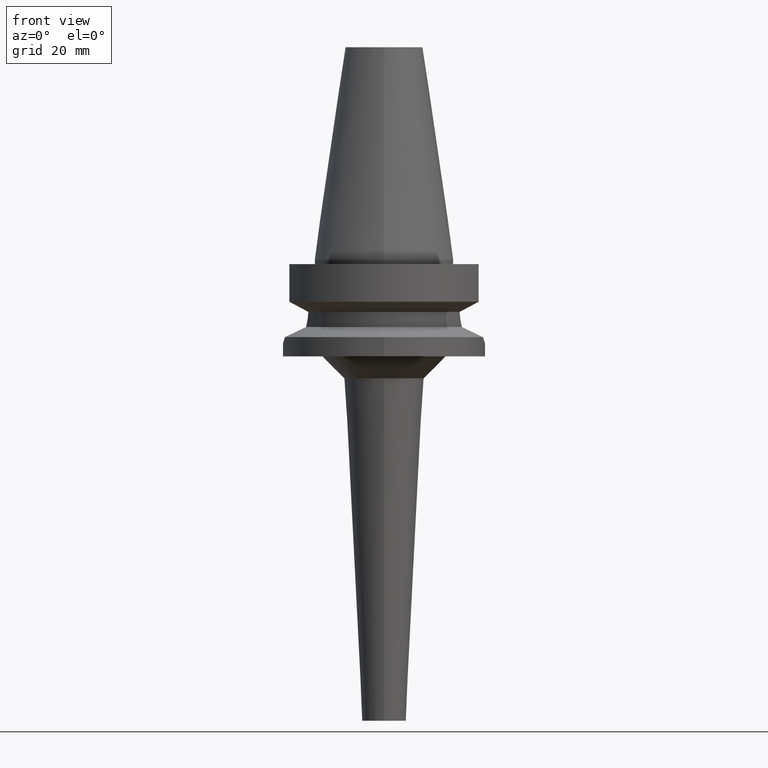
[diagram: clean part render]
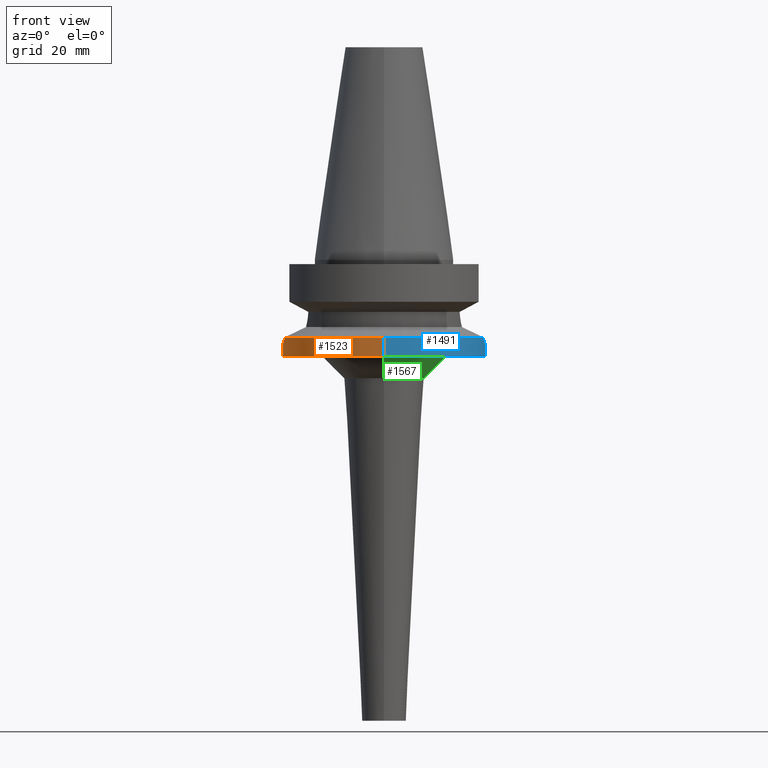
[diagram: same view with three faces highlighted in distinct colors, each labeled with its STEP entity id]
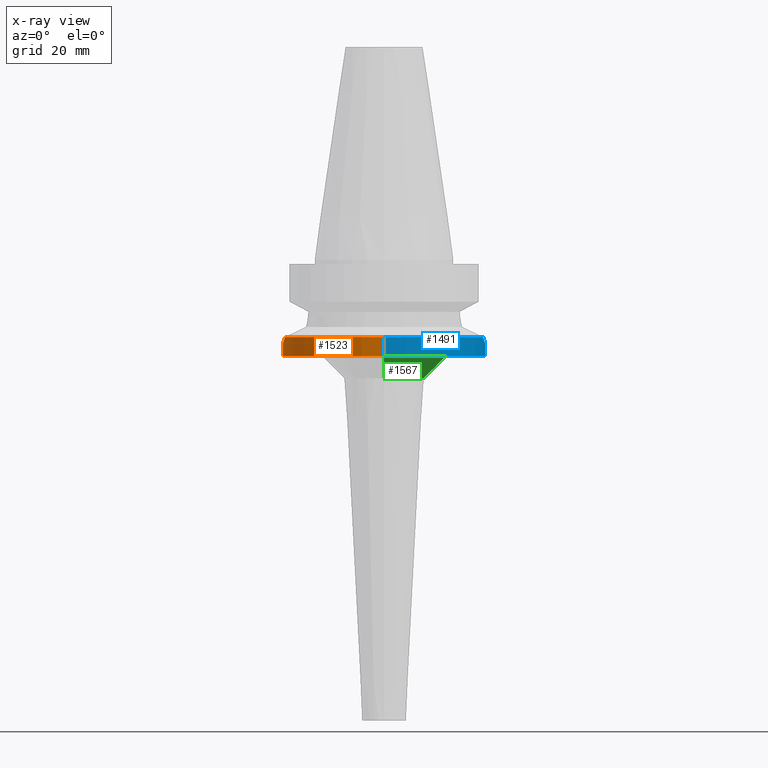
[diagram: x-ray of the same camera — body ghosted, the three highlighted faces saturated]
A machine part, front view with three faces highlighted in distinct colors.
The next image is the same camera in x-ray (body ghosted, the three faces saturated) — at least one of them is partly hidden behind the body in this view.
Their STEP definitions:

[orange] entity #1523 — the highlighted cylindrical surface (partial cylindrical patch) has radius 23 mm, axis along (0, 0, -1).
#430=CARTESIAN_POINT('',(-2.255786346208E1,-4.488072640470E0,
-1.763279163029E1));
#474=CARTESIAN_POINT('',(0.E0,1.022848384030E-14,-1.763279163029E1));
#475=DIRECTION('',(0.E0,0.E0,-1.E0));
#476=DIRECTION('',(0.E0,-1.E0,0.E0));
#477=AXIS2_PLACEMENT_3D('',#474,#475,#476);
#536=DIRECTION('',(0.E0,-2.603192430893E-14,-1.E0));
#537=VECTOR('',#536,4.367208369710E0);
#538=CARTESIAN_POINT('',(0.E0,2.3E1,-1.763279163029E1));
#539=LINE('',#538,#537);
#548=CARTESIAN_POINT('',(-2.255786346208E1,4.488072640470E0,-1.763279163029E1));
#553=CARTESIAN_POINT('',(0.E0,1.022848384030E-14,-1.763279163029E1));
#554=DIRECTION('',(0.E0,0.E0,-1.E0));
#555=DIRECTION('',(-9.807766722644E-1,1.951335930639E-1,0.E0));
#556=AXIS2_PLACEMENT_3D('',#553,#554,#555);
#595=CARTESIAN_POINT('',(-2.255786346208E1,4.488072640470E0,-1.763279163029E1));
#596=CARTESIAN_POINT('',(-2.264975891170E1,4.026189517919E0,-1.794298609992E1));
#597=CARTESIAN_POINT('',(-2.281052504838E1,3.067420022026E0,-1.844825070794E1));
#598=CARTESIAN_POINT('',(-2.296407910225E1,1.567251374023E0,-1.889820028389E1));
#599=CARTESIAN_POINT('',(-2.301879936691E1,-2.705868657787E-2,
-1.905330574055E1));
#600=CARTESIAN_POINT('',(-2.296063820615E1,-1.612384840156E0,
-1.888835035124E1));
#601=CARTESIAN_POINT('',(-2.280629247183E1,-3.095215409394E0,
-1.843534387549E1));
#602=CARTESIAN_POINT('',(-2.264784504853E1,-4.035808939780E0,
-1.793652582606E1));
#603=CARTESIAN_POINT('',(-2.255786346208E1,-4.488072640470E0,
-1.763279163029E1));
#608=DIRECTION('',(0.E0,2.277793377031E-14,-1.E0));
#609=VECTOR('',#608,4.367208369710E0);
#610=CARTESIAN_POINT('',(0.E0,-2.3E1,-1.763279163029E1));
#611=LINE('',#610,#609);
#623=CARTESIAN_POINT('',(0.E0,1.911306259429E-14,-2.2E1));
#624=DIRECTION('',(0.E0,0.E0,1.E0));
#625=DIRECTION('',(0.E0,1.E0,0.E0));
#626=AXIS2_PLACEMENT_3D('',#623,#624,#625);
#1031=CARTESIAN_POINT('',(0.E0,-2.3E1,-2.2E1));
#1032=CARTESIAN_POINT('',(0.E0,2.3E1,-2.2E1));
#1033=VERTEX_POINT('',#1031);
#1034=VERTEX_POINT('',#1032);
#1038=CARTESIAN_POINT('',(0.E0,2.3E1,-1.763279163029E1));
#1039=VERTEX_POINT('',#1038);
#1040=CARTESIAN_POINT('',(0.E0,-2.3E1,-1.763279163029E1));
#1041=VERTEX_POINT('',#1040);
#1055=VERTEX_POINT('',#430);
#1060=VERTEX_POINT('',#548);
#1509=CARTESIAN_POINT('',(0.E0,1.911306259429E-14,5.607E1));
#1510=DIRECTION('',(0.E0,0.E0,-1.E0));
#1511=DIRECTION('',(0.E0,-1.E0,0.E0));
#1512=AXIS2_PLACEMENT_3D('',#1509,#1510,#1511);
#1513=CYLINDRICAL_SURFACE('',#1512,2.3E1);
#1514=ORIENTED_EDGE('',*,*,#1398,.T.);
#1515=ORIENTED_EDGE('',*,*,#1429,.F.);
#1516=ORIENTED_EDGE('',*,*,#1486,.T.);
#1518=ORIENTED_EDGE('',*,*,#1517,.F.);
#1519=ORIENTED_EDGE('',*,*,#1482,.F.);
#1520=ORIENTED_EDGE('',*,*,#1498,.F.);
#1521=EDGE_LOOP('',(#1514,#1515,#1516,#1518,#1519,#1520));
#1522=FACE_OUTER_BOUND('',#1521,.F.);
#478=CIRCLE('',#477,2.3E1);
#557=CIRCLE('',#556,2.3E1);
#604=B_SPLINE_CURVE_WITH_KNOTS('',3,(#595,#596,#597,#598,#599,#600,#601,#602,
#603),.UNSPECIFIED.,.F.,.F.,(4,1,1,1,1,1,4),(0.E0,1.666666666667E-1,
3.333333333333E-1,5.E-1,6.666666666667E-1,8.333333333333E-1,1.E0),
.UNSPECIFIED.);
#627=CIRCLE('',#626,2.3E1);
#1398=EDGE_CURVE('',#1060,#1055,#604,.T.);
#1429=EDGE_CURVE('',#1041,#1055,#478,.T.);
#1482=EDGE_CURVE('',#1039,#1034,#539,.T.);
#1486=EDGE_CURVE('',#1041,#1033,#611,.T.);
#1498=EDGE_CURVE('',#1060,#1039,#557,.T.);
#1517=EDGE_CURVE('',#1034,#1033,#627,.T.);
#1523=ADVANCED_FACE('',(#1522),#1513,.T.);

[blue] entity #1491 — the highlighted cylindrical surface (partial cylindrical patch) has radius 23 mm, axis along (0, 0, -1).
#466=CARTESIAN_POINT('',(0.E0,1.022848384030E-14,-1.763279163029E1));
#467=DIRECTION('',(0.E0,0.E0,-1.E0));
#468=DIRECTION('',(9.807766722644E-1,-1.951335930639E-1,0.E0));
#469=AXIS2_PLACEMENT_3D('',#466,#467,#468);
#516=CARTESIAN_POINT('',(2.255786346208E1,-4.488072640470E0,-1.763279163029E1));
#517=CARTESIAN_POINT('',(2.264815242152E1,-4.034264027644E0,-1.793756336820E1));
#518=CARTESIAN_POINT('',(2.280758329285E1,-3.091487796053E0,-1.843944863256E1));
#519=CARTESIAN_POINT('',(2.296426374127E1,-1.564029530107E0,-1.889880064483E1));
#520=CARTESIAN_POINT('',(2.300000044605E1,-5.266725411526E-1,
-1.900000145547E1));
#521=CARTESIAN_POINT('',(2.300000044605E1,5.252525433188E-14,
-1.900000145547E1));
#526=CARTESIAN_POINT('',(2.300000044605E1,5.252525433188E-14,
-1.900000145547E1));
#527=CARTESIAN_POINT('',(2.300000044605E1,5.268249431403E-1,-1.900000145547E1));
#528=CARTESIAN_POINT('',(2.296424251226E1,1.564382967035E0,-1.889874034183E1));
#529=CARTESIAN_POINT('',(2.280753655701E1,3.091803250600E0,-1.843930737626E1));
#530=CARTESIAN_POINT('',(2.264812827463E1,4.034385394303E0,-1.793748185999E1));
#531=CARTESIAN_POINT('',(2.255786346208E1,4.488072640470E0,-1.763279163029E1));
#536=DIRECTION('',(0.E0,-2.603192430893E-14,-1.E0));
#537=VECTOR('',#536,4.367208369710E0);
#538=CARTESIAN_POINT('',(0.E0,2.3E1,-1.763279163029E1));
#539=LINE('',#538,#537);
#561=CARTESIAN_POINT('',(0.E0,1.022848384030E-14,-1.763279163029E1));
#562=DIRECTION('',(0.E0,0.E0,-1.E0));
#563=DIRECTION('',(0.E0,1.E0,0.E0));
#564=AXIS2_PLACEMENT_3D('',#561,#562,#563);
#608=DIRECTION('',(0.E0,2.277793377031E-14,-1.E0));
#609=VECTOR('',#608,4.367208369710E0);
#610=CARTESIAN_POINT('',(0.E0,-2.3E1,-1.763279163029E1));
#611=LINE('',#610,#609);
#615=CARTESIAN_POINT('',(0.E0,1.911306259429E-14,-2.2E1));
#616=DIRECTION('',(0.E0,0.E0,1.E0));
#617=DIRECTION('',(0.E0,-1.E0,0.E0));
#618=AXIS2_PLACEMENT_3D('',#615,#616,#617);
#1031=CARTESIAN_POINT('',(0.E0,-2.3E1,-2.2E1));
#1032=CARTESIAN_POINT('',(0.E0,2.3E1,-2.2E1));
#1033=VERTEX_POINT('',#1031);
#1034=VERTEX_POINT('',#1032);
#1035=VERTEX_POINT('',#526);
#1036=VERTEX_POINT('',#531);
#1037=VERTEX_POINT('',#516);
#1038=CARTESIAN_POINT('',(0.E0,2.3E1,-1.763279163029E1));
#1039=VERTEX_POINT('',#1038);
#1040=CARTESIAN_POINT('',(0.E0,-2.3E1,-1.763279163029E1));
#1041=VERTEX_POINT('',#1040);
#1473=CARTESIAN_POINT('',(0.E0,1.911306259429E-14,5.607E1));
#1474=DIRECTION('',(0.E0,0.E0,-1.E0));
#1475=DIRECTION('',(0.E0,-1.E0,0.E0));
#1476=AXIS2_PLACEMENT_3D('',#1473,#1474,#1475);
#1477=CYLINDRICAL_SURFACE('',#1476,2.3E1);
#1478=ORIENTED_EDGE('',*,*,#1456,.T.);
#1479=ORIENTED_EDGE('',*,*,#1454,.T.);
#1481=ORIENTED_EDGE('',*,*,#1480,.F.);
#1483=ORIENTED_EDGE('',*,*,#1482,.T.);
#1485=ORIENTED_EDGE('',*,*,#1484,.F.);
#1487=ORIENTED_EDGE('',*,*,#1486,.F.);
#1488=ORIENTED_EDGE('',*,*,#1427,.F.);
#1489=EDGE_LOOP('',(#1478,#1479,#1481,#1483,#1485,#1487,#1488));
#1490=FACE_OUTER_BOUND('',#1489,.F.);
#470=CIRCLE('',#469,2.3E1);
#522=B_SPLINE_CURVE_WITH_KNOTS('',3,(#516,#517,#518,#519,#520,#521),
.UNSPECIFIED.,.F.,.F.,(4,1,1,4),(0.E0,3.333333333333E-1,6.666666666667E-1,1.E0),
.UNSPECIFIED.);
#532=B_SPLINE_CURVE_WITH_KNOTS('',3,(#526,#527,#528,#529,#530,#531),
.UNSPECIFIED.,.F.,.F.,(4,1,1,4),(0.E0,3.333333333333E-1,6.666666666667E-1,1.E0),
.UNSPECIFIED.);
#565=CIRCLE('',#564,2.3E1);
#619=CIRCLE('',#618,2.3E1);
#1427=EDGE_CURVE('',#1037,#1041,#470,.T.);
#1454=EDGE_CURVE('',#1035,#1036,#532,.T.);
#1456=EDGE_CURVE('',#1037,#1035,#522,.T.);
#1480=EDGE_CURVE('',#1039,#1036,#565,.T.);
#1482=EDGE_CURVE('',#1039,#1034,#539,.T.);
#1484=EDGE_CURVE('',#1033,#1034,#619,.T.);
#1486=EDGE_CURVE('',#1041,#1033,#611,.T.);
#1491=ADVANCED_FACE('',(#1490),#1477,.T.);

[green] entity #1567 — the highlighted conical surface has half-angle 45 deg.
#639=CARTESIAN_POINT('',(0.E0,0.E0,-2.2E1));
#640=DIRECTION('',(0.E0,0.E0,-1.E0));
#641=DIRECTION('',(0.E0,1.E0,0.E0));
#642=AXIS2_PLACEMENT_3D('',#639,#640,#641);
#647=DIRECTION('',(0.E0,7.071067811866E-1,-7.071067811865E-1));
#648=VECTOR('',#647,7.071067811867E0);
#649=CARTESIAN_POINT('',(0.E0,-1.408780678408E1,-2.2E1));
#650=LINE('',#649,#648);
#662=DIRECTION('',(0.E0,-7.071067811866E-1,-7.071067811865E-1));
#663=VECTOR('',#662,7.071067811867E0);
#664=CARTESIAN_POINT('',(0.E0,1.408780678408E1,-2.2E1));
#665=LINE('',#664,#663);
#676=CARTESIAN_POINT('',(0.E0,0.E0,-2.7E1));
#677=DIRECTION('',(0.E0,0.E0,1.E0));
#678=DIRECTION('',(0.E0,-1.E0,0.E0));
#679=AXIS2_PLACEMENT_3D('',#676,#677,#678);
#1023=CARTESIAN_POINT('',(0.E0,9.087806784078E0,-2.7E1));
#1024=VERTEX_POINT('',#1023);
#1025=CARTESIAN_POINT('',(0.E0,-9.087806784078E0,-2.7E1));
#1026=VERTEX_POINT('',#1025);
#1027=CARTESIAN_POINT('',(0.E0,1.408780678408E1,-2.2E1));
#1028=VERTEX_POINT('',#1027);
#1029=CARTESIAN_POINT('',(0.E0,-1.408780678408E1,-2.2E1));
#1030=VERTEX_POINT('',#1029);
#1555=CARTESIAN_POINT('',(0.E0,0.E0,-2.45E1));
#1556=DIRECTION('',(0.E0,0.E0,1.E0));
#1557=DIRECTION('',(0.E0,1.E0,0.E0));
#1558=AXIS2_PLACEMENT_3D('',#1555,#1556,#1557);
#1559=CONICAL_SURFACE('',#1558,1.158780678408E1,4.5E1);
#1560=ORIENTED_EDGE('',*,*,#1545,.T.);
#1562=ORIENTED_EDGE('',*,*,#1561,.F.);
#1563=ORIENTED_EDGE('',*,*,#1548,.F.);
#1564=ORIENTED_EDGE('',*,*,#1535,.F.);
#1565=EDGE_LOOP('',(#1560,#1562,#1563,#1564));
#1566=FACE_OUTER_BOUND('',#1565,.F.);
#643=CIRCLE('',#642,1.408780678408E1);
#680=CIRCLE('',#679,9.087806784078E0);
#1535=EDGE_CURVE('',#1028,#1030,#643,.T.);
#1545=EDGE_CURVE('',#1028,#1024,#665,.T.);
#1548=EDGE_CURVE('',#1030,#1026,#650,.T.);
#1561=EDGE_CURVE('',#1026,#1024,#680,.T.);
#1567=ADVANCED_FACE('',(#1566),#1559,.T.);